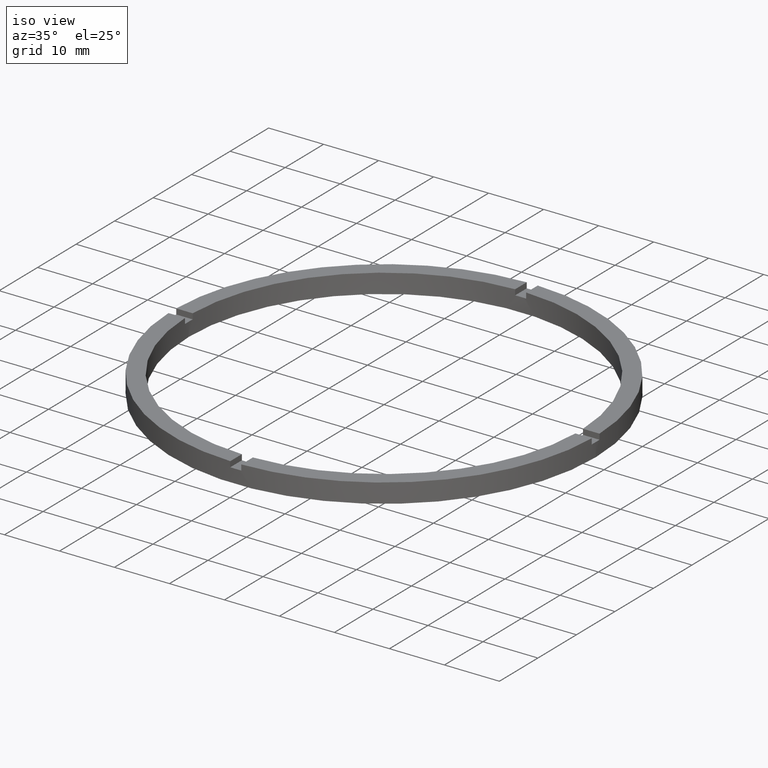
[diagram: clean part render]
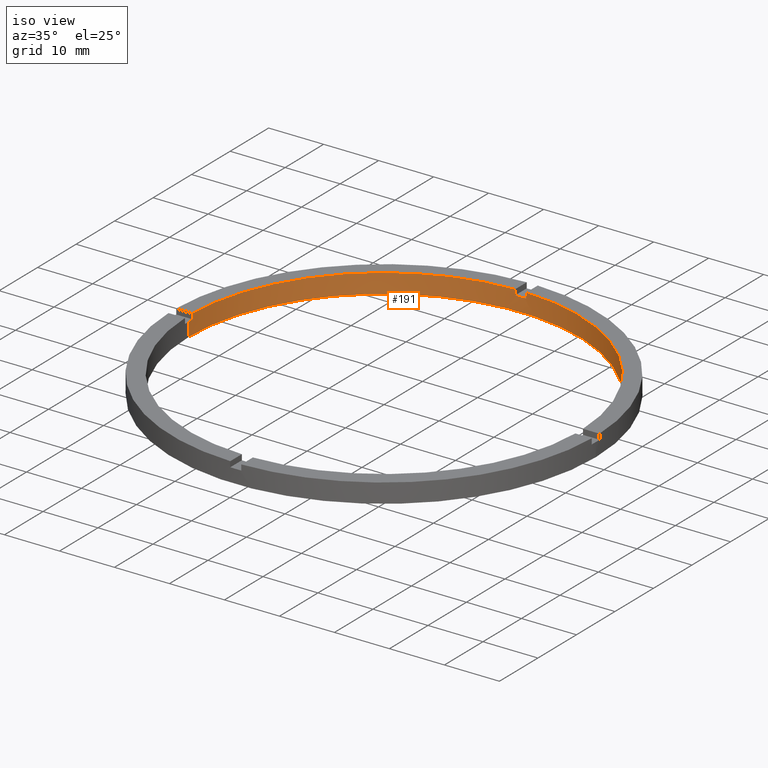
[diagram: same view with one face highlighted and labeled with its STEP entity id]
A machine part, iso view. The second image highlights one B-rep face of the part: STEP entity #191.
In plain terms, the highlighted cylindrical surface (partial cylindrical patch) has radius 35.5 mm, axis along (-0, -0, -1).
Its self-contained STEP definition (entity closure, byte-faithful):
#11 = DIRECTION ( 'NONE',  ( -0.000000000000000000, -0.000000000000000000, -1.000000000000000000 ) ) ;
#17 = CARTESIAN_POINT ( 'NONE',  ( 0.000000000000000000, 0.000000000000000000, 0.000000000000000000 ) ) ;
#33 = LINE ( 'NONE', #739, #334 ) ;
#35 = DIRECTION ( 'NONE',  ( 1.000000000000000000, 0.000000000000000000, 0.000000000000000000 ) ) ;
#43 = CIRCLE ( 'NONE', #615, 35.50000000000000711 ) ;
#59 = CIRCLE ( 'NONE', #507, 35.50000000000000711 ) ;
#60 = CIRCLE ( 'NONE', #553, 35.50000000000000711 ) ;
#66 = CARTESIAN_POINT ( 'NONE',  ( 0.000000000000000000, 0.000000000000000000, 3.500000000000000000 ) ) ;
#69 = DIRECTION ( 'NONE',  ( 0.000000000000000000, 0.000000000000000000, 1.000000000000000000 ) ) ;
#70 = DIRECTION ( 'NONE',  ( -0.000000000000000000, -0.000000000000000000, -1.000000000000000000 ) ) ;
#71 = EDGE_CURVE ( 'NONE', #392, #183, #156, .T. ) ;
#86 = EDGE_CURVE ( 'NONE', #193, #236, #423, .T. ) ;
#100 = DIRECTION ( 'NONE',  ( 1.000000000000000000, 0.000000000000000000, 0.000000000000000000 ) ) ;
#103 = DIRECTION ( 'NONE',  ( -0.000000000000000000, -0.000000000000000000, -1.000000000000000000 ) ) ;
#115 = DIRECTION ( 'NONE',  ( 1.000000000000000000, 0.000000000000000000, 0.000000000000000000 ) ) ;
#134 = DIRECTION ( 'NONE',  ( 0.000000000000000000, 0.000000000000000000, 1.000000000000000000 ) ) ;
#136 = VERTEX_POINT ( 'NONE', #640 ) ;
#138 = DIRECTION ( 'NONE',  ( -1.000000000000000000, 0.000000000000000000, 0.000000000000000000 ) ) ;
#156 = CIRCLE ( 'NONE', #180, 35.50000000000000711 ) ;
#164 = DIRECTION ( 'NONE',  ( 1.000000000000000000, 0.000000000000000000, 0.000000000000000000 ) ) ;
#174 = CARTESIAN_POINT ( 'NONE',  ( 35.48591269785801927, 0.9999999999998425704, 2.500000000000000000 ) ) ;
#178 = VERTEX_POINT ( 'NONE', #174 ) ;
#180 = AXIS2_PLACEMENT_3D ( 'NONE', #289, #468, #233 ) ;
#183 = VERTEX_POINT ( 'NONE', #380 ) ;
#188 = ORIENTED_EDGE ( 'NONE', *, *, #499, .T. ) ;
#189 = DIRECTION ( 'NONE',  ( 0.000000000000000000, 0.000000000000000000, 1.000000000000000000 ) ) ;
#191 = ADVANCED_FACE ( 'NONE', ( #569 ), #322, .F. ) ;
#193 = VERTEX_POINT ( 'NONE', #674 ) ;
#195 = DIRECTION ( 'NONE',  ( 1.000000000000000000, 0.000000000000000000, 0.000000000000000000 ) ) ;
#212 = ORIENTED_EDGE ( 'NONE', *, *, #307, .F. ) ;
#217 = ORIENTED_EDGE ( 'NONE', *, *, #86, .T. ) ;
#219 = CARTESIAN_POINT ( 'NONE',  ( -35.50000000000000711, 0.000000000000000000, 0.000000000000000000 ) ) ;
#221 = VERTEX_POINT ( 'NONE', #278 ) ;
#227 = EDGE_CURVE ( 'NONE', #503, #398, #43, .T. ) ;
#228 = VERTEX_POINT ( 'NONE', #286 ) ;
#233 = DIRECTION ( 'NONE',  ( 1.000000000000000000, 0.000000000000000000, 0.000000000000000000 ) ) ;
#235 = ORIENTED_EDGE ( 'NONE', *, *, #649, .F. ) ;
#236 = VERTEX_POINT ( 'NONE', #219 ) ;
#240 = VERTEX_POINT ( 'NONE', #765 ) ;
#241 = CARTESIAN_POINT ( 'NONE',  ( 0.000000000000000000, 0.000000000000000000, 2.500000000000000000 ) ) ;
#242 = EDGE_CURVE ( 'NONE', #221, #236, #60, .T. ) ;
#256 = VERTEX_POINT ( 'NONE', #521 ) ;
#261 = CARTESIAN_POINT ( 'NONE',  ( 0.000000000000000000, 0.000000000000000000, 2.500000000000000000 ) ) ;
#275 = CARTESIAN_POINT ( 'NONE',  ( -35.48591269785801217, 0.9999999999999726885, 3.500000000000000000 ) ) ;
#278 = CARTESIAN_POINT ( 'NONE',  ( 35.50000000000000711, 4.347496136973104070E-15, 0.000000000000000000 ) ) ;
#286 = CARTESIAN_POINT ( 'NONE',  ( 35.50000000000000711, 4.347496136973104070E-15, 2.500000000000000000 ) ) ;
#289 = CARTESIAN_POINT ( 'NONE',  ( 0.000000000000000000, 0.000000000000000000, 2.500000000000000000 ) ) ;
#294 = EDGE_CURVE ( 'NONE', #503, #183, #33, .T. ) ;
#298 = DIRECTION ( 'NONE',  ( 0.000000000000000000, 0.000000000000000000, 1.000000000000000000 ) ) ;
#307 = EDGE_CURVE ( 'NONE', #392, #256, #336, .T. ) ;
#312 = CARTESIAN_POINT ( 'NONE',  ( 35.48591269785801927, 0.9999999999998425704, 3.500000000000000000 ) ) ;
#314 = AXIS2_PLACEMENT_3D ( 'NONE', #261, #298, #164 ) ;
#322 = CYLINDRICAL_SURFACE ( 'NONE', #641, 35.50000000000000711 ) ;
#334 = VECTOR ( 'NONE', #11, 1000.000000000000000 ) ;
#336 = LINE ( 'NONE', #441, #573 ) ;
#338 = DIRECTION ( 'NONE',  ( 0.000000000000000000, 0.000000000000000000, 1.000000000000000000 ) ) ;
#342 = LINE ( 'NONE', #312, #356 ) ;
#344 = CIRCLE ( 'NONE', #755, 35.50000000000000711 ) ;
#346 = VECTOR ( 'NONE', #189, 1000.000000000000000 ) ;
#356 = VECTOR ( 'NONE', #70, 1000.000000000000000 ) ;
#380 = CARTESIAN_POINT ( 'NONE',  ( -1.000000000000025313, 35.48591269785801217, 2.500000000000000000 ) ) ;
#391 = CARTESIAN_POINT ( 'NONE',  ( -35.48591269785801217, 0.9999999999999726885, 3.500000000000000000 ) ) ;
#392 = VERTEX_POINT ( 'NONE', #440 ) ;
#398 = VERTEX_POINT ( 'NONE', #391 ) ;
#403 = CARTESIAN_POINT ( 'NONE',  ( -35.50000000000000711, 0.000000000000000000, 3.500000000000000000 ) ) ;
#415 = ORIENTED_EDGE ( 'NONE', *, *, #227, .T. ) ;
#416 = EDGE_CURVE ( 'NONE', #228, #221, #593, .T. ) ;
#423 = LINE ( 'NONE', #403, #675 ) ;
#431 = CARTESIAN_POINT ( 'NONE',  ( 0.000000000000000000, 0.000000000000000000, 3.500000000000000000 ) ) ;
#440 = CARTESIAN_POINT ( 'NONE',  ( 0.9999999999999746869, 35.48591269785801217, 2.500000000000000000 ) ) ;
#441 = CARTESIAN_POINT ( 'NONE',  ( 0.9999999999999746869, 35.48591269785801217, 3.500000000000000000 ) ) ;
#448 = EDGE_LOOP ( 'NONE', ( #771, #659, #481, #516, #212, #491, #475, #415, #235, #188, #217, #454 ) ) ;
#454 = ORIENTED_EDGE ( 'NONE', *, *, #242, .F. ) ;
#468 = DIRECTION ( 'NONE',  ( 0.000000000000000000, -0.000000000000000000, 1.000000000000000000 ) ) ;
#470 = CARTESIAN_POINT ( 'NONE',  ( -1.000000000000025313, 35.48591269785801217, 3.500000000000000000 ) ) ;
#475 = ORIENTED_EDGE ( 'NONE', *, *, #294, .F. ) ;
#481 = ORIENTED_EDGE ( 'NONE', *, *, #635, .F. ) ;
#491 = ORIENTED_EDGE ( 'NONE', *, *, #71, .T. ) ;
#499 = EDGE_CURVE ( 'NONE', #136, #193, #59, .T. ) ;
#503 = VERTEX_POINT ( 'NONE', #470 ) ;
#507 = AXIS2_PLACEMENT_3D ( 'NONE', #241, #773, #115 ) ;
#516 = ORIENTED_EDGE ( 'NONE', *, *, #535, .T. ) ;
#521 = CARTESIAN_POINT ( 'NONE',  ( 0.9999999999999746869, 35.48591269785801217, 3.500000000000000000 ) ) ;
#522 = CARTESIAN_POINT ( 'NONE',  ( 35.50000000000000711, 4.347496136973104070E-15, 3.500000000000000000 ) ) ;
#527 = EDGE_CURVE ( 'NONE', #228, #178, #583, .T. ) ;
#535 = EDGE_CURVE ( 'NONE', #240, #256, #344, .T. ) ;
#549 = DIRECTION ( 'NONE',  ( 0.000000000000000000, 0.000000000000000000, 1.000000000000000000 ) ) ;
#553 = AXIS2_PLACEMENT_3D ( 'NONE', #17, #338, #100 ) ;
#569 = FACE_OUTER_BOUND ( 'NONE', #448, .T. ) ;
#572 = DIRECTION ( 'NONE',  ( -0.000000000000000000, -0.000000000000000000, -1.000000000000000000 ) ) ;
#573 = VECTOR ( 'NONE', #69, 1000.000000000000000 ) ;
#575 = LINE ( 'NONE', #275, #346 ) ;
#583 = CIRCLE ( 'NONE', #314, 35.50000000000000711 ) ;
#593 = LINE ( 'NONE', #522, #601 ) ;
#598 = CARTESIAN_POINT ( 'NONE',  ( 0.000000000000000000, 0.000000000000000000, 3.500000000000000000 ) ) ;
#601 = VECTOR ( 'NONE', #629, 1000.000000000000000 ) ;
#615 = AXIS2_PLACEMENT_3D ( 'NONE', #66, #134, #195 ) ;
#629 = DIRECTION ( 'NONE',  ( -0.000000000000000000, -0.000000000000000000, -1.000000000000000000 ) ) ;
#635 = EDGE_CURVE ( 'NONE', #240, #178, #342, .T. ) ;
#640 = CARTESIAN_POINT ( 'NONE',  ( -35.48591269785801217, 0.9999999999999726885, 2.500000000000000000 ) ) ;
#641 = AXIS2_PLACEMENT_3D ( 'NONE', #598, #103, #138 ) ;
#649 = EDGE_CURVE ( 'NONE', #136, #398, #575, .T. ) ;
#659 = ORIENTED_EDGE ( 'NONE', *, *, #527, .T. ) ;
#674 = CARTESIAN_POINT ( 'NONE',  ( -35.50000000000000711, 0.000000000000000000, 2.500000000000000000 ) ) ;
#675 = VECTOR ( 'NONE', #572, 1000.000000000000000 ) ;
#739 = CARTESIAN_POINT ( 'NONE',  ( -1.000000000000025313, 35.48591269785801217, 3.500000000000000000 ) ) ;
#755 = AXIS2_PLACEMENT_3D ( 'NONE', #431, #549, #35 ) ;
#765 = CARTESIAN_POINT ( 'NONE',  ( 35.48591269785801927, 0.9999999999998425704, 3.500000000000000000 ) ) ;
#771 = ORIENTED_EDGE ( 'NONE', *, *, #416, .F. ) ;
#773 = DIRECTION ( 'NONE',  ( 0.000000000000000000, 0.000000000000000000, 1.000000000000000000 ) ) ;